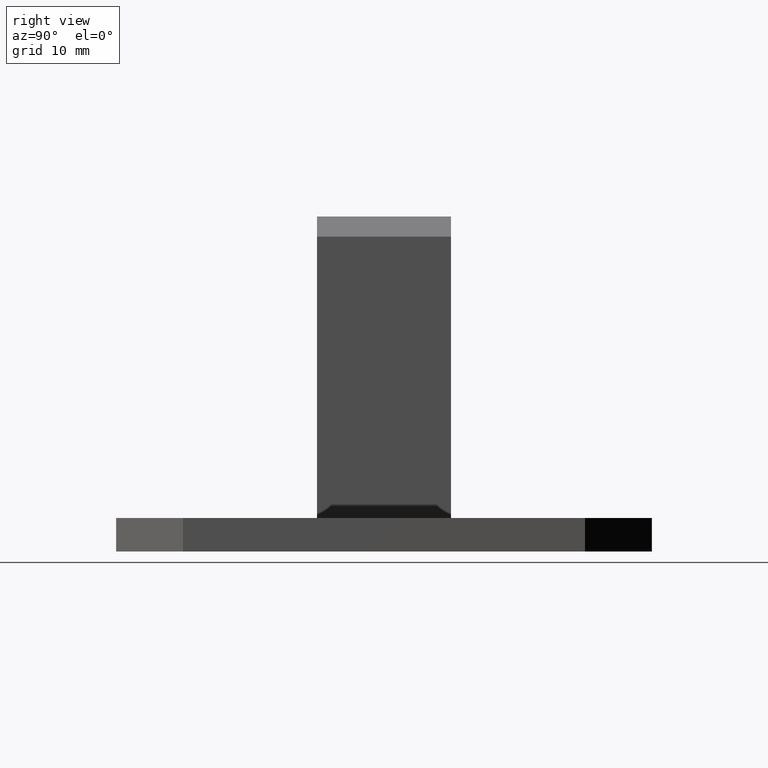
[diagram: clean part render]
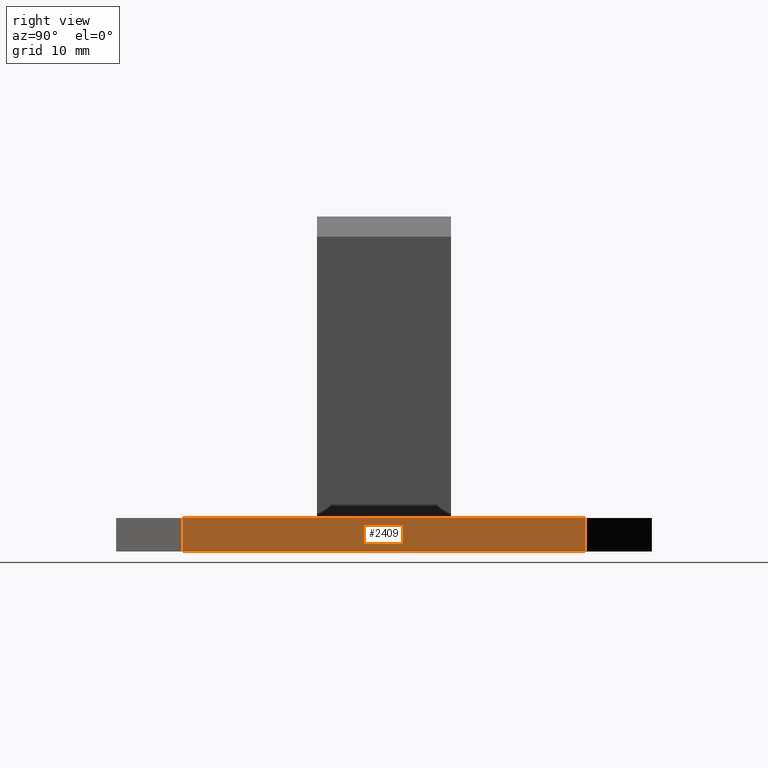
[diagram: same view with one face highlighted and labeled with its STEP entity id]
A machine part, right view. The second image highlights one B-rep face of the part: STEP entity #2409.
In plain terms, the highlighted planar face has unit normal (-1, -0, 0).
Its self-contained STEP definition (entity closure, byte-faithful):
#137 = FACE_OUTER_BOUND ( 'NONE', #3616, .T. ) ;
#150 = PLANE ( 'NONE',  #1021 ) ;
#888 = CARTESIAN_POINT ( 'NONE',  ( 27.49999999999997200, 30.00000000000000700, 5.000000000000000000 ) ) ;
#947 = VECTOR ( 'NONE', #5213, 1000.000000000000000 ) ;
#959 = CARTESIAN_POINT ( 'NONE',  ( 27.49999999999997200, 30.00000000000000700, 5.000000000000000000 ) ) ;
#1012 = DIRECTION ( 'NONE',  ( -0.0000000000000000000, -0.0000000000000000000, -1.000000000000000000 ) ) ;
#1021 = AXIS2_PLACEMENT_3D ( 'NONE', #1542, #8336, #6909 ) ;
#1224 = ORIENTED_EDGE ( 'NONE', *, *, #6215, .T. ) ;
#1283 = LINE ( 'NONE', #888, #5252 ) ;
#1415 = ORIENTED_EDGE ( 'NONE', *, *, #5445, .F. ) ;
#1542 = CARTESIAN_POINT ( 'NONE',  ( 27.49999999999997200, 30.00000000000000700, 5.000000000000000000 ) ) ;
#1603 = CARTESIAN_POINT ( 'NONE',  ( 27.49999999999998900, -30.00000000000000000, 5.000000000000000000 ) ) ;
#1993 = LINE ( 'NONE', #9021, #947 ) ;
#2015 = VERTEX_POINT ( 'NONE', #4487 ) ;
#2409 = ADVANCED_FACE ( 'NONE', ( #137 ), #150, .F. ) ;
#3086 = VERTEX_POINT ( 'NONE', #1603 ) ;
#3294 = VECTOR ( 'NONE', #1012, 1000.000000000000000 ) ;
#3616 = EDGE_LOOP ( 'NONE', ( #8370, #1415, #7011, #1224 ) ) ;
#3806 = EDGE_CURVE ( 'NONE', #3086, #2015, #1283, .T. ) ;
#4487 = CARTESIAN_POINT ( 'NONE',  ( 27.49999999999997200, 30.00000000000000700, 5.000000000000000000 ) ) ;
#5213 = DIRECTION ( 'NONE',  ( -2.891205793294678300E-016, 1.000000000000000000, -0.0000000000000000000 ) ) ;
#5252 = VECTOR ( 'NONE', #6861, 1000.000000000000000 ) ;
#5445 = EDGE_CURVE ( 'NONE', #2015, #6930, #8889, .T. ) ;
#6215 = EDGE_CURVE ( 'NONE', #3086, #7683, #9583, .T. ) ;
#6227 = CARTESIAN_POINT ( 'NONE',  ( 27.49999999999998900, -30.00000000000000000, 5.000000000000000000 ) ) ;
#6833 = VECTOR ( 'NONE', #8505, 1000.000000000000000 ) ;
#6861 = DIRECTION ( 'NONE',  ( -2.891205793294678300E-016, 1.000000000000000000, -0.0000000000000000000 ) ) ;
#6909 = DIRECTION ( 'NONE',  ( 2.891205793294678300E-016, -1.000000000000000000, 0.0000000000000000000 ) ) ;
#6930 = VERTEX_POINT ( 'NONE', #9594 ) ;
#7011 = ORIENTED_EDGE ( 'NONE', *, *, #3806, .F. ) ;
#7683 = VERTEX_POINT ( 'NONE', #8063 ) ;
#7761 = EDGE_CURVE ( 'NONE', #7683, #6930, #1993, .T. ) ;
#8063 = CARTESIAN_POINT ( 'NONE',  ( 27.49999999999998900, -30.00000000000000000, 0.0000000000000000000 ) ) ;
#8336 = DIRECTION ( 'NONE',  ( -1.000000000000000000, -2.891205793294678300E-016, 0.0000000000000000000 ) ) ;
#8370 = ORIENTED_EDGE ( 'NONE', *, *, #7761, .T. ) ;
#8505 = DIRECTION ( 'NONE',  ( -0.0000000000000000000, -0.0000000000000000000, -1.000000000000000000 ) ) ;
#8889 = LINE ( 'NONE', #959, #6833 ) ;
#9021 = CARTESIAN_POINT ( 'NONE',  ( 27.49999999999997200, 30.00000000000000700, 0.0000000000000000000 ) ) ;
#9583 = LINE ( 'NONE', #6227, #3294 ) ;
#9594 = CARTESIAN_POINT ( 'NONE',  ( 27.49999999999997200, 30.00000000000000700, 0.0000000000000000000 ) ) ;